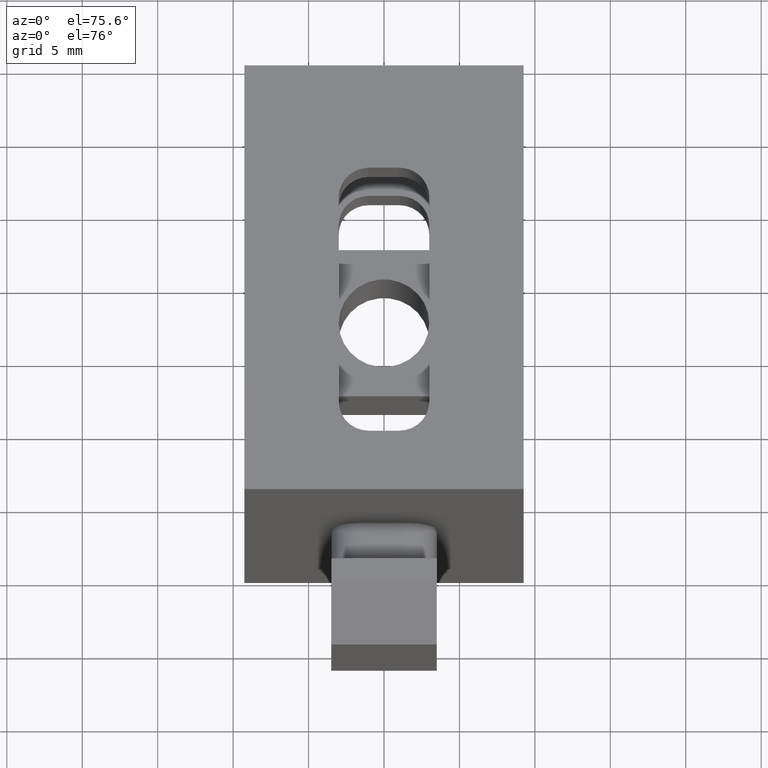
[diagram: clean part render]
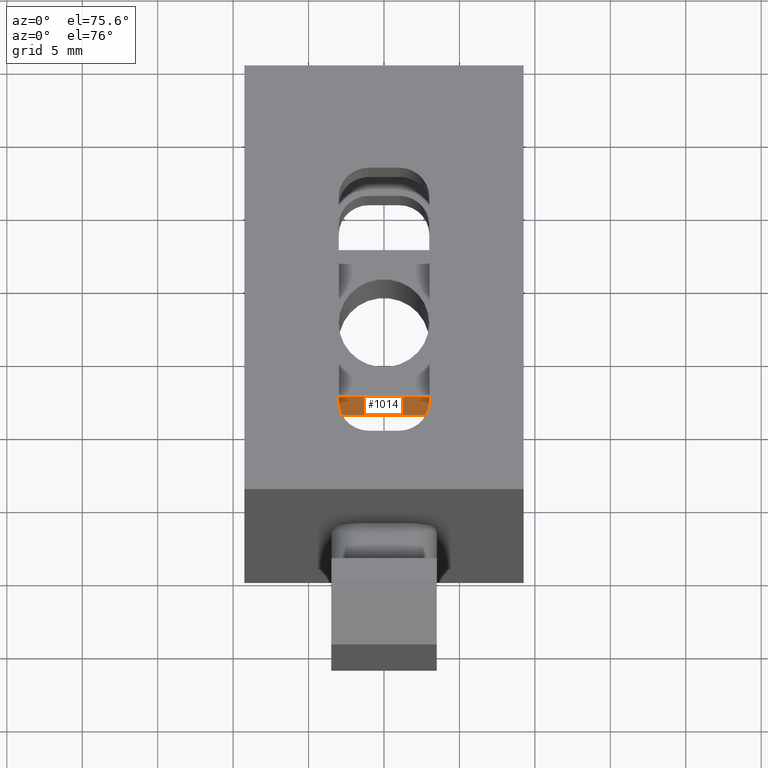
[diagram: same view with one face highlighted and labeled with its STEP entity id]
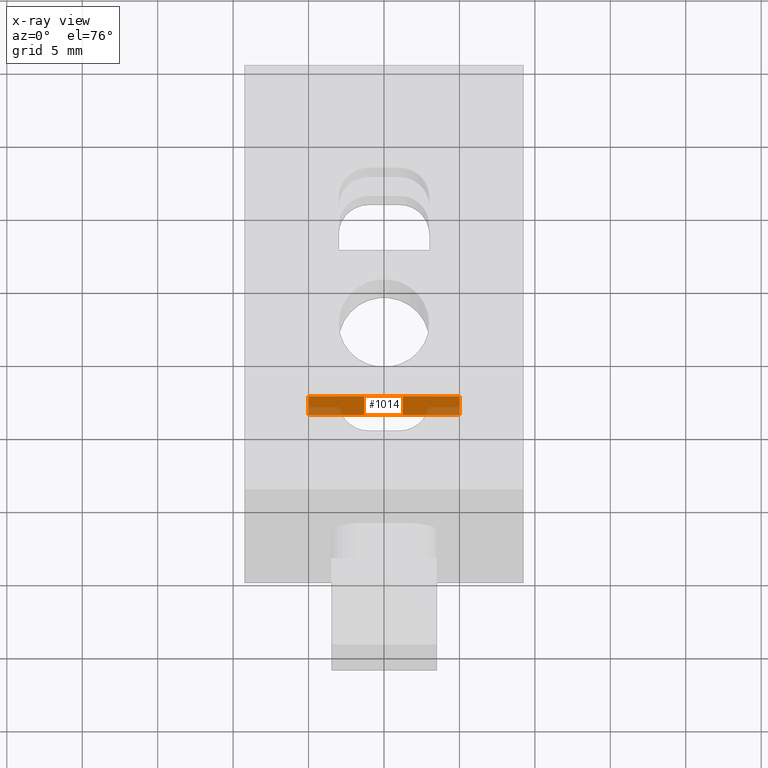
[diagram: x-ray of the same camera — body ghosted, the highlighted face saturated]
A machine part, auxiliary view. The second image highlights one B-rep face of the part: STEP entity #1014.
The next image is the same camera in x-ray: the body ghosted, the highlighted face saturated — about 18% of this face is hidden behind the body in this view.
In plain terms, the highlighted planar face has unit normal (0, 1, 0).
Its self-contained STEP definition (entity closure, byte-faithful):
#16=LINE('',#1442,#136);
#19=LINE('',#1448,#139);
#22=LINE('',#1454,#142);
#25=LINE('',#1459,#145);
#136=VECTOR('',#1158,10.);
#139=VECTOR('',#1163,5.);
#142=VECTOR('',#1168,10.);
#145=VECTOR('',#1173,5.);
#260=PLANE('',#1074);
#320=FACE_OUTER_BOUND('',#378,.T.);
#378=EDGE_LOOP('',(#727,#728,#729,#730));
#462=VERTEX_POINT('',#1439);
#463=VERTEX_POINT('',#1441);
#465=VERTEX_POINT('',#1447);
#467=VERTEX_POINT('',#1453);
#560=EDGE_CURVE('',#462,#463,#16,.T.);
#563=EDGE_CURVE('',#463,#465,#19,.T.);
#566=EDGE_CURVE('',#465,#467,#22,.T.);
#569=EDGE_CURVE('',#467,#462,#25,.T.);
#727=ORIENTED_EDGE('',*,*,#569,.F.);
#728=ORIENTED_EDGE('',*,*,#566,.F.);
#729=ORIENTED_EDGE('',*,*,#563,.F.);
#730=ORIENTED_EDGE('',*,*,#560,.F.);
#1014=ADVANCED_FACE('',(#320),#260,.F.);
#1074=AXIS2_PLACEMENT_3D('',#1462,#1177,#1178);
#1158=DIRECTION('',(1.,0.,0.));
#1163=DIRECTION('',(0.,0.,-1.));
#1168=DIRECTION('',(-1.,0.,0.));
#1173=DIRECTION('',(0.,0.,1.));
#1177=DIRECTION('center_axis',(0.,1.,0.));
#1178=DIRECTION('ref_axis',(0.,0.,1.));
#1439=CARTESIAN_POINT('',(-5.,7.,6.50000000000003));
#1441=CARTESIAN_POINT('',(5.,7.,6.50000000000003));
#1442=CARTESIAN_POINT('',(-5.,7.,6.50000000000003));
#1447=CARTESIAN_POINT('',(5.,7.,1.50000000000003));
#1448=CARTESIAN_POINT('',(5.,7.,6.50000000000003));
#1453=CARTESIAN_POINT('',(-5.,7.,1.50000000000003));
#1454=CARTESIAN_POINT('',(5.,7.,1.50000000000003));
#1459=CARTESIAN_POINT('',(-5.,7.,1.50000000000003));
#1462=CARTESIAN_POINT('Origin',(6.00000034335208,7.,0.999999656660163));